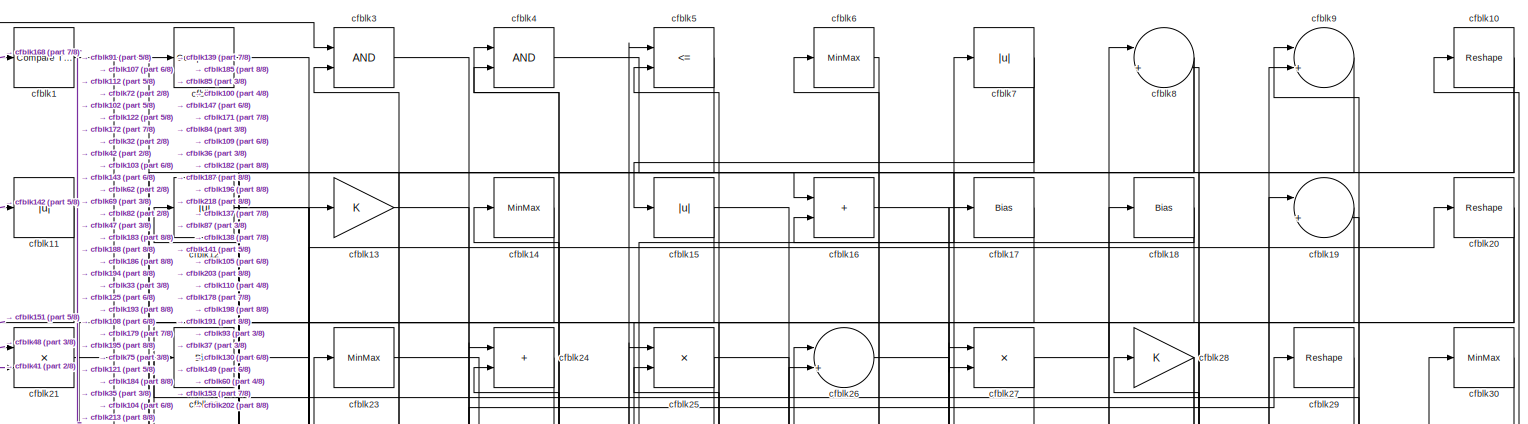
[diagram: root canvas - part 1/8, full width, top band]
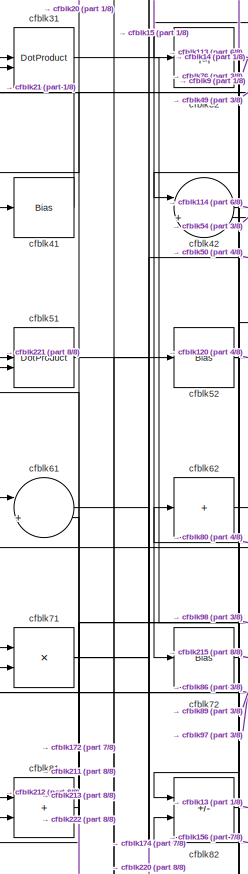
[diagram: root canvas - part 2/8, top left region]
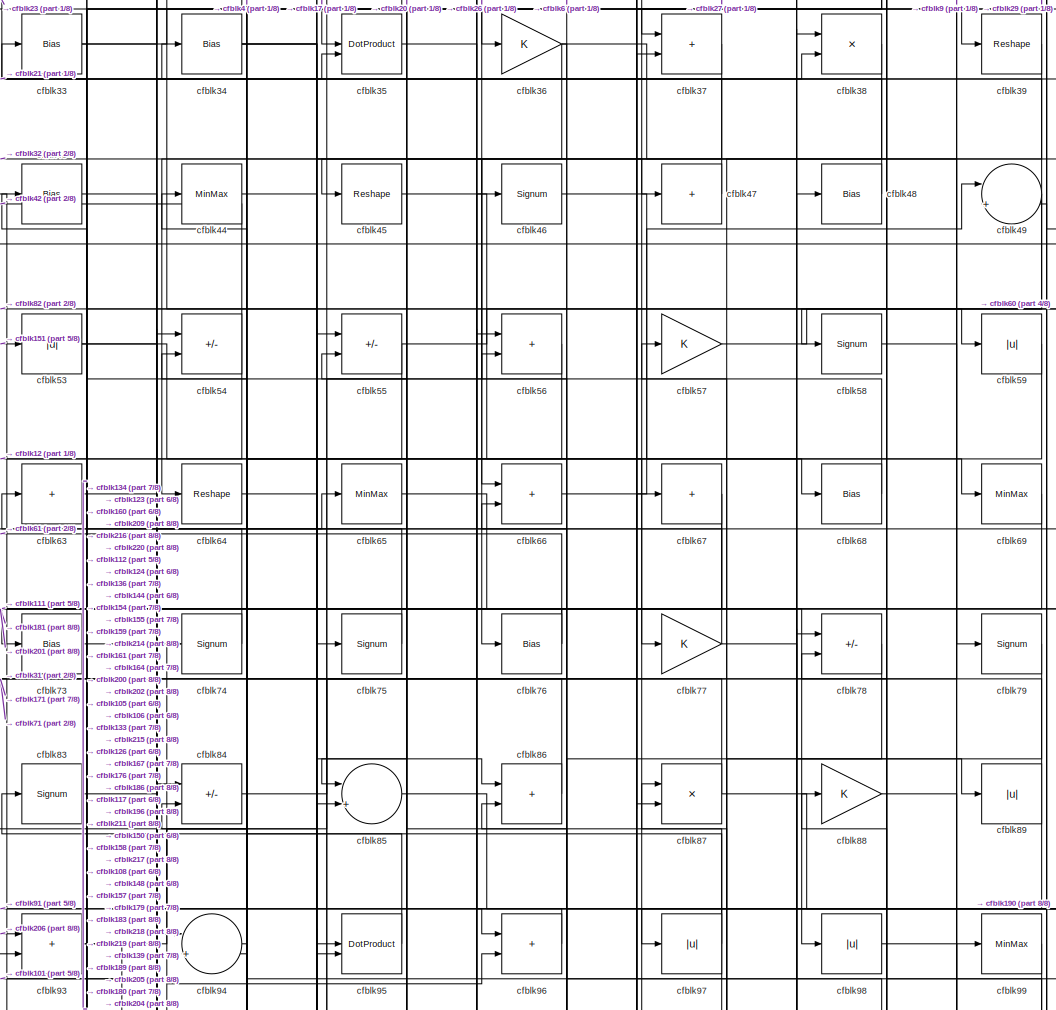
[diagram: root canvas - part 3/8, top center region]
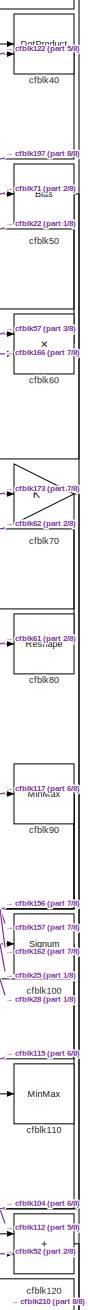
[diagram: root canvas - part 4/8, top right region]
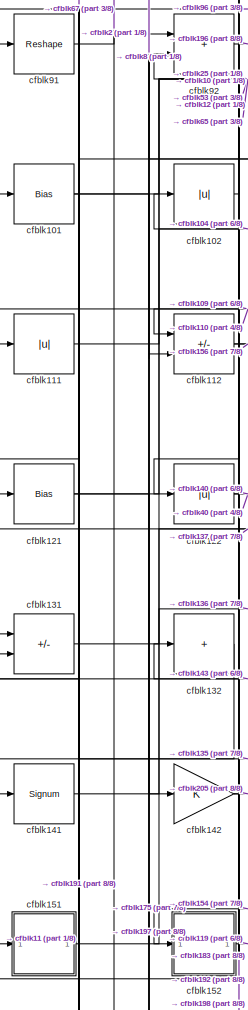
[diagram: root canvas - part 5/8, middle left region]
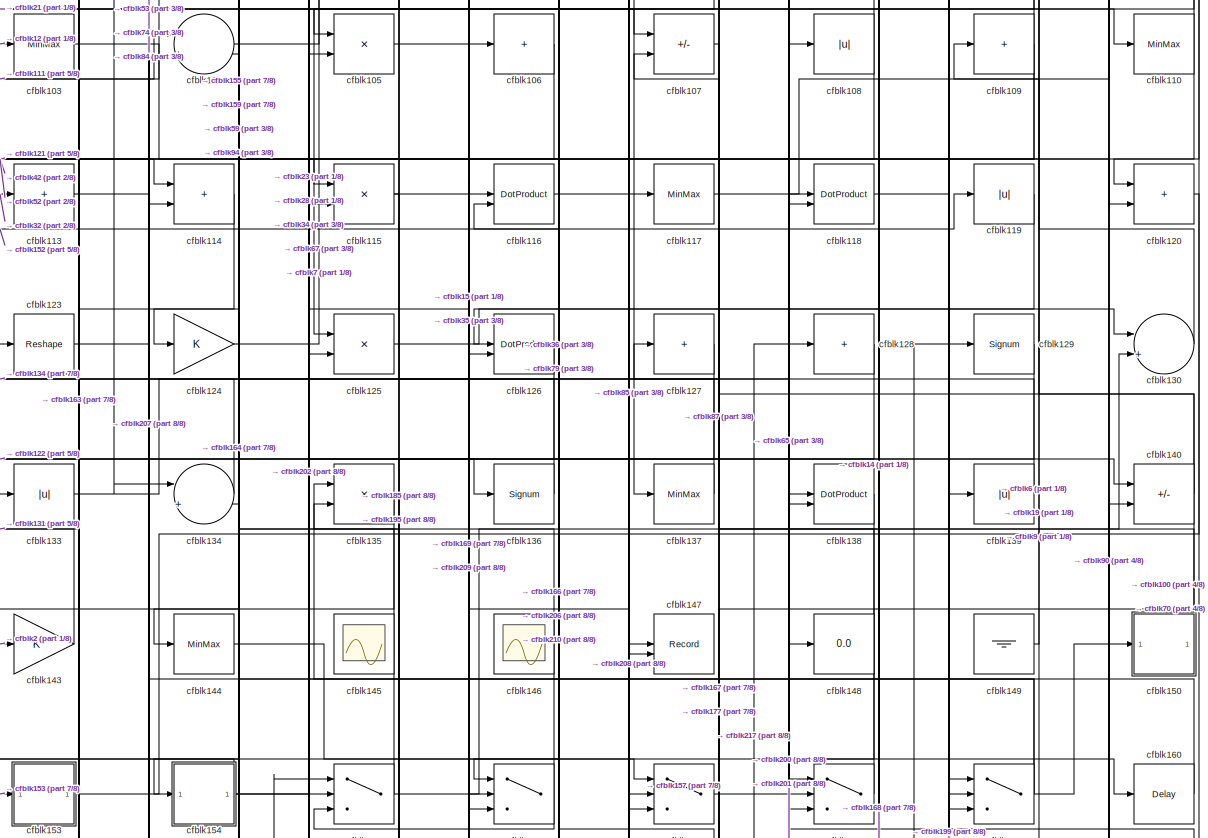
[diagram: root canvas - part 6/8, full width, middle band]
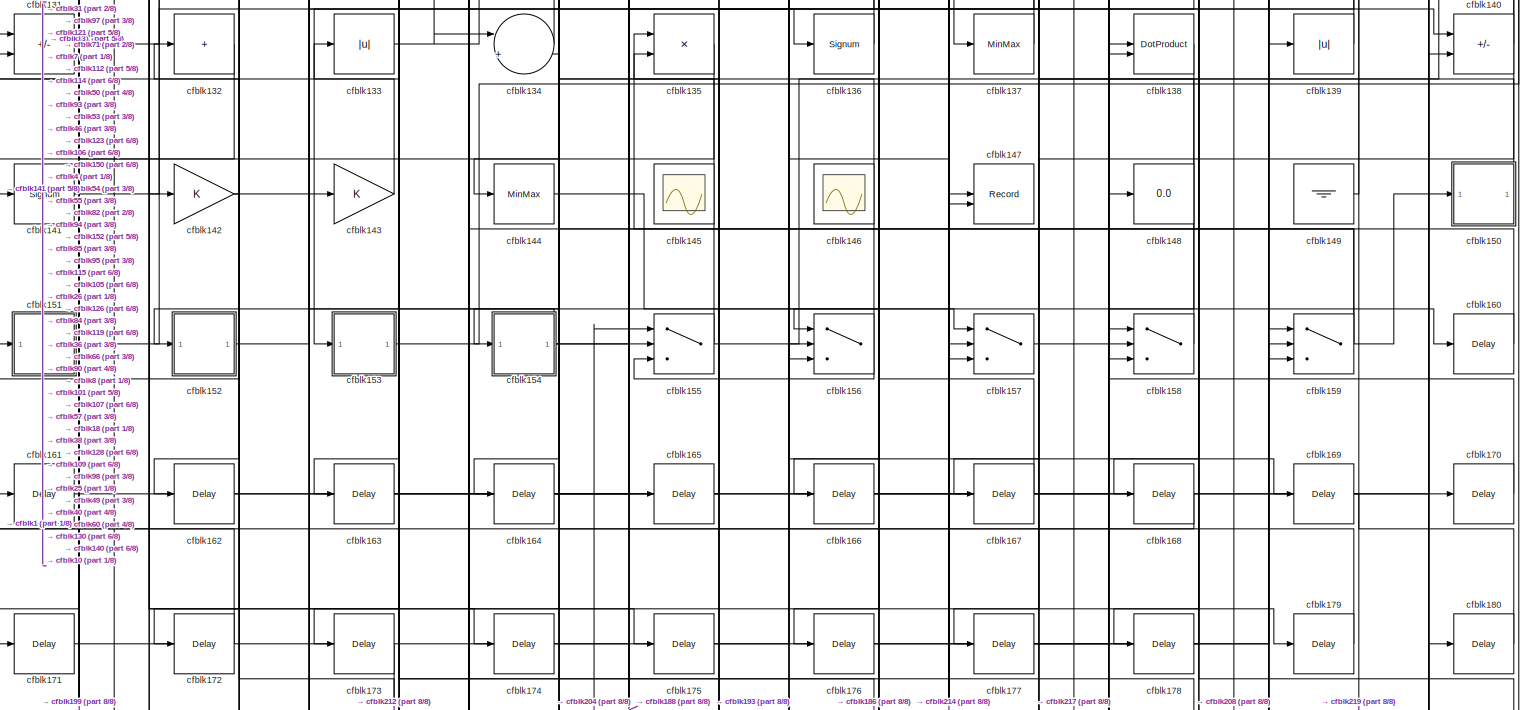
[diagram: root canvas - part 7/8, full width, bottom band]
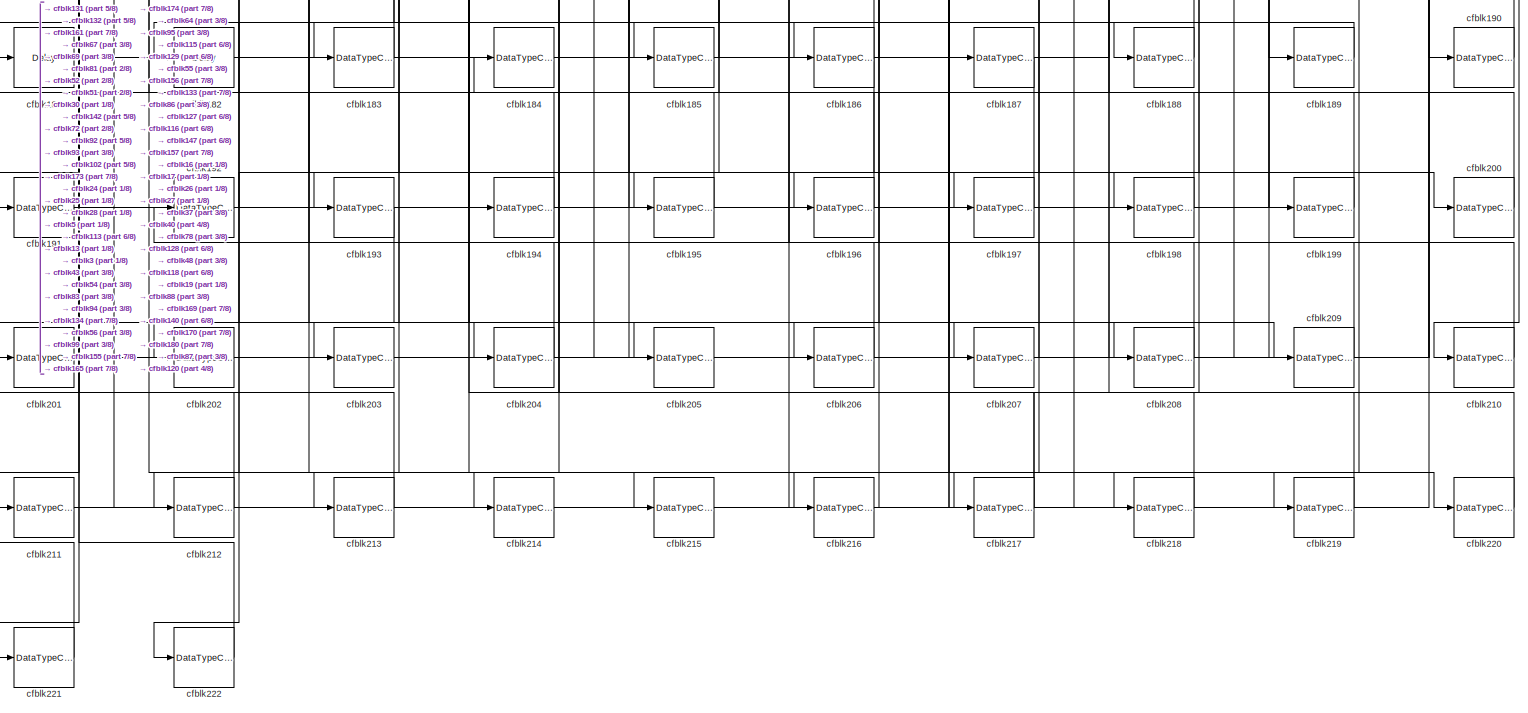
[diagram: root canvas - part 8/8, full width, bottom band]
MODEL slx_fe447b7cc841
KIND model
CONFIG AbsTol = auto
CONFIG EnableMultiTasking = off
CONFIG FixedStep = auto
CONFIG MaxStep = auto
CONFIG MinStep = auto
CONFIG RelTol = 1e-3
CONFIG SampleTimeConstraint = Unconstrained
CONFIG SolverName = VariableStepAuto
CONFIG StartTime = 0.0
CONFIG StopTime = 10.0
BLOCK [Reference] cfblk1  REF=hdlsllib/Logic and Bit
Operations/Compare
To Constant
  SourceBlock = hdlsllib/Logic and Bit\nOperations/Compare\nTo Constant
  SourceType = Compare To Constant
BLOCK [Reshape] cfblk10
BLOCK [Signum] cfblk100
BLOCK [Bias] cfblk101
  Bias = 0.0
  SaturateOnIntegerOverflow = off
BLOCK [Abs] cfblk102
  SaturateOnIntegerOverflow = off
BLOCK [MinMax] cfblk103
BLOCK [Sum] cfblk104
  Inputs = |++
BLOCK [Product] cfblk105
  Inputs = */
  RndMeth = Zero
  SaturateOnIntegerOverflow = on
BLOCK [Sum] cfblk106
  IconShape = rectangular
  Inputs = +
BLOCK [Sum] cfblk107
  IconShape = rectangular
  Inputs = +-
BLOCK [Abs] cfblk108
  SaturateOnIntegerOverflow = off
BLOCK [Sum] cfblk109
  IconShape = rectangular
  Inputs = +
BLOCK [Abs] cfblk11
  SaturateOnIntegerOverflow = off
BLOCK [MinMax] cfblk110
BLOCK [Abs] cfblk111
  SaturateOnIntegerOverflow = off
BLOCK [Sum] cfblk112
  IconShape = rectangular
  Inputs = +-
BLOCK [Sum] cfblk113
  IconShape = rectangular
  Inputs = +
BLOCK [Sum] cfblk114
  IconShape = rectangular
BLOCK [Product] cfblk115
  Inputs = */
  RndMeth = Zero
  SaturateOnIntegerOverflow = on
BLOCK [DotProduct] cfblk116
  OutDataTypeStr = Inherit: Inherit via internal rule
BLOCK [MinMax] cfblk117
BLOCK [DotProduct] cfblk118
  OutDataTypeStr = Inherit: Inherit via internal rule
BLOCK [Abs] cfblk119
  SaturateOnIntegerOverflow = off
BLOCK [Abs] cfblk12
  SaturateOnIntegerOverflow = off
BLOCK [Sum] cfblk120
  IconShape = rectangular
BLOCK [Bias] cfblk121
  Bias = 0.0
  SaturateOnIntegerOverflow = off
BLOCK [Abs] cfblk122
  SaturateOnIntegerOverflow = off
BLOCK [Reshape] cfblk123
BLOCK [Gain] cfblk124
BLOCK [Product] cfblk125
  Inputs = */
  RndMeth = Zero
  SaturateOnIntegerOverflow = on
BLOCK [DotProduct] cfblk126
  OutDataTypeStr = Inherit: Inherit via internal rule
BLOCK [Sum] cfblk127
  IconShape = rectangular
  Inputs = +
BLOCK [Sum] cfblk128
  IconShape = rectangular
  Inputs = +
BLOCK [Signum] cfblk129
BLOCK [Gain] cfblk13
BLOCK [Sum] cfblk130
  Inputs = |++
BLOCK [Sum] cfblk131
  IconShape = rectangular
  Inputs = +-
BLOCK [Sum] cfblk132
  IconShape = rectangular
  Inputs = +
BLOCK [Abs] cfblk133
  SaturateOnIntegerOverflow = off
BLOCK [Sum] cfblk134
  Inputs = |++
BLOCK [Product] cfblk135
  Inputs = */
  RndMeth = Zero
  SaturateOnIntegerOverflow = on
BLOCK [Signum] cfblk136
BLOCK [MinMax] cfblk137
BLOCK [DotProduct] cfblk138
  OutDataTypeStr = Inherit: Inherit via internal rule
BLOCK [Abs] cfblk139
  SaturateOnIntegerOverflow = off
BLOCK [MinMax] cfblk14
BLOCK [Sum] cfblk140
  IconShape = rectangular
  Inputs = +-
BLOCK [Signum] cfblk141
BLOCK [Gain] cfblk142
BLOCK [Gain] cfblk143
BLOCK [MinMax] cfblk144
BLOCK [Scope] cfblk145
  Floating = on
  NumInputPorts = 1
  ScopeSpecificationString = Simulink.scopes.TimeScopeBlockCfg('CurrentConfiguration', extmgr.ConfigurationSet(extmgr.Configuration('Core','General UI',true,'FigureColor',[0.156862745098039 0.156862745098039 0.156862745098039]),extmgr.Configuration('Core','Source UI',true),extmgr.Configuration('Sources','WiredSimulink',true,'DataLoggingVariableName','ScopeData1','DataLoggingSaveFormat','StructureWithTime','DataLoggingLimitDat...<+2713ch>
BLOCK [Scope] cfblk146
  Floating = on
  NumInputPorts = 1
  ScopeSpecificationString = Simulink.scopes.TimeScopeBlockCfg('CurrentConfiguration', extmgr.ConfigurationSet(extmgr.Configuration('Core','General UI',true,'FigureColor',[0.156862745098039 0.156862745098039 0.156862745098039]),extmgr.Configuration('Core','Source UI',true),extmgr.Configuration('Sources','WiredSimulink',true,'DataLoggingVariableName','ScopeData1','DataLoggingSaveFormat','StructureWithTime','DataLoggingLimitDat...<+2713ch>
BLOCK [Record] cfblk147
  CompatibilityTag = XY
  FileSettingsInternal = {"entries":[{"content":{"excelSettings":{"content":{},"type":"Streamout.ExcelSettings"}},"type":"Streamout.FileSettingStorage","uuid":""}],"packageUris":["http:\/\/schema.mathworks.com\/mf0\/streamout_blocks\/R2020a"],"version":"1.0"}
  Layout = [1 1]
  SignalsInternal = {"entries":[{"content":{"signals":[{"content":{"blockPath":[],"dimensions":[1],"domain":"","lineColor":"#a2142f","plots":[1],"port":1,"signalID":5187,"signalName":"XY Graph:1"},"type":"RecordBlkView.Signal","uuid":""},{"content":{"blockPath":[],"dimensions":[1],"domain":"","lineColor":"#139fff","plots":[1],"port":2,"signalID":5190,"signalName":"XY Graph:2"},"type":"RecordBlkView.Signal","uuid":""}...<+146ch>
  VisualizationBindings = {"xyplotplugin":{"info":[{"series":[{"bindingParametersList":[{"parameter":"X-Axis","signalID":5187,"signalName":"XY Graph:1"},{"parameter":"Y-Axis","signalID":5190,"signalName":"XY Graph:2"}],"seriesID":22600}],"subplotID":1}]}}
  st = -1
BLOCK [Display] cfblk148
  Decimation = 1
BLOCK [Ground] cfblk149
BLOCK [Abs] cfblk15
  SaturateOnIntegerOverflow = off
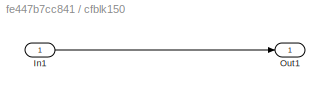
BLOCK [SubSystem] cfblk150
  LibrarySourceBlock = hdlsllib/Ports &\nSubsystems/Subsystem
BLOCK [Inport] cfblk150/In1
BLOCK [Outport] cfblk150/Out1
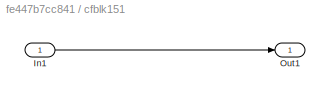
BLOCK [SubSystem] cfblk151
  LibrarySourceBlock = hdlsllib/Ports &\nSubsystems/Subsystem
BLOCK [Inport] cfblk151/In1
BLOCK [Outport] cfblk151/Out1
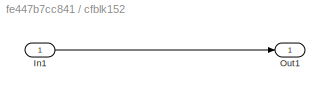
BLOCK [SubSystem] cfblk152
  LibrarySourceBlock = hdlsllib/Ports &\nSubsystems/Subsystem
BLOCK [Inport] cfblk152/In1
BLOCK [Outport] cfblk152/Out1
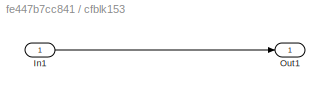
BLOCK [SubSystem] cfblk153
  LibrarySourceBlock = hdlsllib/Ports &\nSubsystems/Subsystem
BLOCK [Inport] cfblk153/In1
BLOCK [Outport] cfblk153/Out1
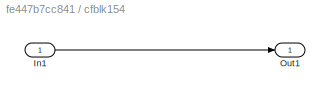
BLOCK [SubSystem] cfblk154
  LibrarySourceBlock = hdlsllib/Ports &\nSubsystems/Subsystem
BLOCK [Inport] cfblk154/In1
BLOCK [Outport] cfblk154/Out1
BLOCK [Switch] cfblk155
  InputSameDT = off
  SaturateOnIntegerOverflow = off
BLOCK [Switch] cfblk156
  InputSameDT = off
  SaturateOnIntegerOverflow = off
BLOCK [Switch] cfblk157
  InputSameDT = off
  SaturateOnIntegerOverflow = off
BLOCK [Switch] cfblk158
  InputSameDT = off
  SaturateOnIntegerOverflow = off
BLOCK [Switch] cfblk159
  InputSameDT = off
  SaturateOnIntegerOverflow = off
BLOCK [Sum] cfblk16
  IconShape = rectangular
BLOCK [Delay] cfblk160
  InputPortMap = u0
  SampleTime = 1
BLOCK [Delay] cfblk161
  InputPortMap = u0
  SampleTime = 1
BLOCK [Delay] cfblk162
  InputPortMap = u0
  SampleTime = 1
BLOCK [Delay] cfblk163
  InputPortMap = u0
  SampleTime = 1
BLOCK [Delay] cfblk164
  InputPortMap = u0
  SampleTime = 1
BLOCK [Delay] cfblk165
  InputPortMap = u0
  SampleTime = 1
BLOCK [Delay] cfblk166
  InputPortMap = u0
  SampleTime = 1
BLOCK [Delay] cfblk167
  InputPortMap = u0
  SampleTime = 1
BLOCK [Delay] cfblk168
  InputPortMap = u0
  SampleTime = 1
BLOCK [Delay] cfblk169
  InputPortMap = u0
  SampleTime = 1
BLOCK [Bias] cfblk17
  Bias = 0.0
  SaturateOnIntegerOverflow = off
BLOCK [Delay] cfblk170
  InputPortMap = u0
  SampleTime = 1
BLOCK [Delay] cfblk171
  InputPortMap = u0
  SampleTime = 1
BLOCK [Delay] cfblk172
  InputPortMap = u0
  SampleTime = 1
BLOCK [Delay] cfblk173
  InputPortMap = u0
  SampleTime = 1
BLOCK [Delay] cfblk174
  InputPortMap = u0
  SampleTime = 1
BLOCK [Delay] cfblk175
  InputPortMap = u0
  SampleTime = 1
BLOCK [Delay] cfblk176
  InputPortMap = u0
  SampleTime = 1
BLOCK [Delay] cfblk177
  InputPortMap = u0
  SampleTime = 1
BLOCK [Delay] cfblk178
  InputPortMap = u0
  SampleTime = 1
BLOCK [Delay] cfblk179
  InputPortMap = u0
  SampleTime = 1
BLOCK [Bias] cfblk18
  Bias = 0.0
  SaturateOnIntegerOverflow = off
BLOCK [Delay] cfblk180
  InputPortMap = u0
  SampleTime = 1
BLOCK [Delay] cfblk181
  InputPortMap = u0
  SampleTime = 1
BLOCK [Delay] cfblk182
  InputPortMap = u0
  SampleTime = 1
BLOCK [DataTypeConversion] cfblk183
  RndMeth = Floor
  SaturateOnIntegerOverflow = off
BLOCK [DataTypeConversion] cfblk184
  OutDataTypeStr = uint8
  RndMeth = Floor
  SaturateOnIntegerOverflow = off
BLOCK [DataTypeConversion] cfblk185
  OutDataTypeStr = uint8
  RndMeth = Floor
  SaturateOnIntegerOverflow = off
BLOCK [DataTypeConversion] cfblk186
  RndMeth = Floor
  SaturateOnIntegerOverflow = off
BLOCK [DataTypeConversion] cfblk187
  OutDataTypeStr = uint8
  RndMeth = Floor
  SaturateOnIntegerOverflow = off
BLOCK [DataTypeConversion] cfblk188
  OutDataTypeStr = uint8
  RndMeth = Floor
  SaturateOnIntegerOverflow = off
BLOCK [DataTypeConversion] cfblk189
  OutDataTypeStr = uint8
  RndMeth = Floor
  SaturateOnIntegerOverflow = off
BLOCK [Sum] cfblk19
  Inputs = |++
BLOCK [DataTypeConversion] cfblk190
  OutDataTypeStr = uint8
  RndMeth = Floor
  SaturateOnIntegerOverflow = off
BLOCK [DataTypeConversion] cfblk191
  RndMeth = Floor
  SaturateOnIntegerOverflow = off
BLOCK [DataTypeConversion] cfblk192
  OutDataTypeStr = uint8
  RndMeth = Floor
  SaturateOnIntegerOverflow = off
BLOCK [DataTypeConversion] cfblk193
  RndMeth = Floor
  SaturateOnIntegerOverflow = off
BLOCK [DataTypeConversion] cfblk194
  OutDataTypeStr = uint8
  RndMeth = Floor
  SaturateOnIntegerOverflow = off
BLOCK [DataTypeConversion] cfblk195
  OutDataTypeStr = uint8
  RndMeth = Floor
  SaturateOnIntegerOverflow = off
BLOCK [DataTypeConversion] cfblk196
  RndMeth = Floor
  SaturateOnIntegerOverflow = off
BLOCK [DataTypeConversion] cfblk197
  OutDataTypeStr = uint8
  RndMeth = Floor
  SaturateOnIntegerOverflow = off
BLOCK [DataTypeConversion] cfblk198
  OutDataTypeStr = uint8
  RndMeth = Floor
  SaturateOnIntegerOverflow = off
BLOCK [DataTypeConversion] cfblk199
  OutDataTypeStr = uint8
  RndMeth = Floor
  SaturateOnIntegerOverflow = off
BLOCK [Reference] cfblk2  REF=hdlsllib/Logic and Bit
Operations/Compare
To Constant
  SourceBlock = hdlsllib/Logic and Bit\nOperations/Compare\nTo Constant
  SourceType = Compare To Constant
BLOCK [Reshape] cfblk20
BLOCK [DataTypeConversion] cfblk200
  OutDataTypeStr = uint8
  RndMeth = Floor
  SaturateOnIntegerOverflow = off
BLOCK [DataTypeConversion] cfblk201
  OutDataTypeStr = uint8
  RndMeth = Floor
  SaturateOnIntegerOverflow = off
BLOCK [DataTypeConversion] cfblk202
  RndMeth = Floor
  SaturateOnIntegerOverflow = off
BLOCK [DataTypeConversion] cfblk203
  OutDataTypeStr = uint8
  RndMeth = Floor
  SaturateOnIntegerOverflow = off
BLOCK [DataTypeConversion] cfblk204
  RndMeth = Floor
  SaturateOnIntegerOverflow = off
BLOCK [DataTypeConversion] cfblk205
  OutDataTypeStr = uint8
  RndMeth = Floor
  SaturateOnIntegerOverflow = off
BLOCK [DataTypeConversion] cfblk206
  RndMeth = Floor
  SaturateOnIntegerOverflow = off
BLOCK [DataTypeConversion] cfblk207
  OutDataTypeStr = uint8
  RndMeth = Floor
  SaturateOnIntegerOverflow = off
BLOCK [DataTypeConversion] cfblk208
  RndMeth = Floor
  SaturateOnIntegerOverflow = off
BLOCK [DataTypeConversion] cfblk209
  OutDataTypeStr = uint8
  RndMeth = Floor
  SaturateOnIntegerOverflow = off
BLOCK [Product] cfblk21
  Inputs = */
  RndMeth = Zero
  SaturateOnIntegerOverflow = on
BLOCK [DataTypeConversion] cfblk210
  OutDataTypeStr = uint8
  RndMeth = Floor
  SaturateOnIntegerOverflow = off
BLOCK [DataTypeConversion] cfblk211
  RndMeth = Floor
  SaturateOnIntegerOverflow = off
BLOCK [DataTypeConversion] cfblk212
  OutDataTypeStr = uint8
  RndMeth = Floor
  SaturateOnIntegerOverflow = off
BLOCK [DataTypeConversion] cfblk213
  OutDataTypeStr = uint8
  RndMeth = Floor
  SaturateOnIntegerOverflow = off
BLOCK [DataTypeConversion] cfblk214
  RndMeth = Floor
  SaturateOnIntegerOverflow = off
BLOCK [DataTypeConversion] cfblk215
  OutDataTypeStr = uint8
  RndMeth = Floor
  SaturateOnIntegerOverflow = off
BLOCK [DataTypeConversion] cfblk216
  OutDataTypeStr = uint8
  RndMeth = Floor
  SaturateOnIntegerOverflow = off
BLOCK [DataTypeConversion] cfblk217
  RndMeth = Floor
  SaturateOnIntegerOverflow = off
BLOCK [DataTypeConversion] cfblk218
  OutDataTypeStr = uint8
  RndMeth = Floor
  SaturateOnIntegerOverflow = off
BLOCK [DataTypeConversion] cfblk219
  OutDataTypeStr = uint8
  RndMeth = Floor
  SaturateOnIntegerOverflow = off
BLOCK [Bias] cfblk22
  Bias = 0.0
  SaturateOnIntegerOverflow = off
BLOCK [DataTypeConversion] cfblk220
  OutDataTypeStr = uint8
  RndMeth = Floor
  SaturateOnIntegerOverflow = off
BLOCK [DataTypeConversion] cfblk221
  OutDataTypeStr = uint8
  RndMeth = Floor
  SaturateOnIntegerOverflow = off
BLOCK [DataTypeConversion] cfblk222
  OutDataTypeStr = uint8
  RndMeth = Floor
  SaturateOnIntegerOverflow = off
BLOCK [MinMax] cfblk23
BLOCK [Sum] cfblk24
  IconShape = rectangular
BLOCK [Product] cfblk25
  Inputs = */
  RndMeth = Zero
  SaturateOnIntegerOverflow = on
BLOCK [Sum] cfblk26
  Inputs = |++
BLOCK [Product] cfblk27
  Inputs = */
  RndMeth = Zero
  SaturateOnIntegerOverflow = on
BLOCK [Gain] cfblk28
BLOCK [Reshape] cfblk29
BLOCK [Logic] cfblk3
  AllPortsSameDT = off
  OutDataTypeStr = boolean
BLOCK [MinMax] cfblk30
BLOCK [DotProduct] cfblk31
  OutDataTypeStr = Inherit: Inherit via internal rule
BLOCK [Abs] cfblk32
  SaturateOnIntegerOverflow = off
BLOCK [Bias] cfblk33
  Bias = 0.0
  SaturateOnIntegerOverflow = off
BLOCK [Bias] cfblk34
  Bias = 0.0
  SaturateOnIntegerOverflow = off
BLOCK [DotProduct] cfblk35
  OutDataTypeStr = Inherit: Inherit via internal rule
BLOCK [Gain] cfblk36
BLOCK [Sum] cfblk37
  IconShape = rectangular
BLOCK [Product] cfblk38
  Inputs = */
  RndMeth = Zero
  SaturateOnIntegerOverflow = on
BLOCK [Reshape] cfblk39
BLOCK [Logic] cfblk4
  AllPortsSameDT = off
  OutDataTypeStr = boolean
BLOCK [DotProduct] cfblk40
  OutDataTypeStr = Inherit: Inherit via internal rule
BLOCK [Bias] cfblk41
  Bias = 0.0
  SaturateOnIntegerOverflow = off
BLOCK [Sum] cfblk42
  Inputs = |++
BLOCK [Bias] cfblk43
  Bias = 0.0
  SaturateOnIntegerOverflow = off
BLOCK [MinMax] cfblk44
BLOCK [Reshape] cfblk45
BLOCK [Signum] cfblk46
BLOCK [Sum] cfblk47
  IconShape = rectangular
  Inputs = +
BLOCK [Bias] cfblk48
  Bias = 0.0
  SaturateOnIntegerOverflow = off
BLOCK [Sum] cfblk49
  Inputs = |++
BLOCK [RelationalOperator] cfblk5
  InputSameDT = off
  Operator = <=
  OutDataTypeStr = boolean
BLOCK [Bias] cfblk50
  Bias = 0.0
  SaturateOnIntegerOverflow = off
BLOCK [DotProduct] cfblk51
  OutDataTypeStr = Inherit: Inherit via internal rule
BLOCK [Bias] cfblk52
  Bias = 0.0
  SaturateOnIntegerOverflow = off
BLOCK [Abs] cfblk53
  SaturateOnIntegerOverflow = off
BLOCK [Sum] cfblk54
  IconShape = rectangular
  Inputs = +-
BLOCK [Sum] cfblk55
  IconShape = rectangular
  Inputs = +-
BLOCK [Sum] cfblk56
  IconShape = rectangular
BLOCK [Gain] cfblk57
BLOCK [Signum] cfblk58
BLOCK [Abs] cfblk59
  SaturateOnIntegerOverflow = off
BLOCK [MinMax] cfblk6
BLOCK [Product] cfblk60
  Inputs = */
  RndMeth = Zero
  SaturateOnIntegerOverflow = on
BLOCK [Sum] cfblk61
  Inputs = |++
BLOCK [Sum] cfblk62
  IconShape = rectangular
  Inputs = +
BLOCK [Sum] cfblk63
  IconShape = rectangular
  Inputs = +
BLOCK [Reshape] cfblk64
BLOCK [MinMax] cfblk65
BLOCK [Sum] cfblk66
  IconShape = rectangular
BLOCK [Sum] cfblk67
  IconShape = rectangular
  Inputs = +
BLOCK [Bias] cfblk68
  Bias = 0.0
  SaturateOnIntegerOverflow = off
BLOCK [MinMax] cfblk69
BLOCK [Abs] cfblk7
  SaturateOnIntegerOverflow = off
BLOCK [Gain] cfblk70
BLOCK [Product] cfblk71
  Inputs = */
  RndMeth = Zero
  SaturateOnIntegerOverflow = on
BLOCK [Bias] cfblk72
  Bias = 0.0
  SaturateOnIntegerOverflow = off
BLOCK [Bias] cfblk73
  Bias = 0.0
  SaturateOnIntegerOverflow = off
BLOCK [Signum] cfblk74
BLOCK [Signum] cfblk75
BLOCK [Bias] cfblk76
  Bias = 0.0
  SaturateOnIntegerOverflow = off
BLOCK [Gain] cfblk77
BLOCK [Sum] cfblk78
  IconShape = rectangular
  Inputs = +-
BLOCK [Signum] cfblk79
BLOCK [Sum] cfblk8
  Inputs = |++
BLOCK [Reshape] cfblk80
BLOCK [Sum] cfblk81
  IconShape = rectangular
BLOCK [Sum] cfblk82
  IconShape = rectangular
  Inputs = +-
BLOCK [Signum] cfblk83
BLOCK [Sum] cfblk84
  IconShape = rectangular
  Inputs = +-
BLOCK [Sum] cfblk85
  Inputs = |++
BLOCK [Sum] cfblk86
  IconShape = rectangular
BLOCK [Product] cfblk87
  Inputs = */
  RndMeth = Zero
  SaturateOnIntegerOverflow = on
BLOCK [Gain] cfblk88
BLOCK [Abs] cfblk89
  SaturateOnIntegerOverflow = off
BLOCK [Sum] cfblk9
  Inputs = |++
BLOCK [MinMax] cfblk90
BLOCK [Reshape] cfblk91
BLOCK [Sum] cfblk92
  IconShape = rectangular
BLOCK [Sum] cfblk93
  IconShape = rectangular
BLOCK [Sum] cfblk94
  Inputs = |++
BLOCK [DotProduct] cfblk95
  OutDataTypeStr = Inherit: Inherit via internal rule
BLOCK [Sum] cfblk96
  IconShape = rectangular
BLOCK [Abs] cfblk97
  SaturateOnIntegerOverflow = off
BLOCK [Abs] cfblk98
  SaturateOnIntegerOverflow = off
BLOCK [MinMax] cfblk99
LINE cfblk100:1 -> cfblk115:1
NET cfblk101:1 -> cfblk142:1, cfblk65:1
LINE cfblk102:1 -> cfblk12:1
LINE cfblk103:1 -> cfblk125:1
LINE cfblk104:1 -> cfblk7:1
LINE cfblk105:1 -> cfblk157:1
LINE cfblk106:1 -> cfblk164:1
LINE cfblk107:1 -> cfblk167:1
NET cfblk108:1 -> cfblk115:2, cfblk14:1
NET cfblk109:1 -> cfblk121:1, cfblk168:1, cfblk6:1
NET cfblk10:1 -> cfblk122:1, cfblk178:1
NET cfblk110:1 -> cfblk112:1, cfblk28:1
LINE cfblk111:1 -> cfblk104:1
NET cfblk112:1 -> cfblk156:3, cfblk96:2
LINE cfblk113:1 -> cfblk207:1
LINE cfblk114:1 -> cfblk163:1
NET cfblk115:1 -> cfblk169:1, cfblk185:1
LINE cfblk116:1 -> cfblk208:1
LINE cfblk117:1 -> cfblk90:1
LINE cfblk118:1 -> cfblk199:1
LINE cfblk119:1 -> cfblk166:1
LINE cfblk11:1 -> cfblk151:1
LINE cfblk120:1 -> cfblk210:1
NET cfblk121:1 -> cfblk175:1, cfblk25:1
NET cfblk122:1 -> cfblk140:1, cfblk40:2
LINE cfblk123:1 -> cfblk74:1
LINE cfblk124:1 -> cfblk67:1
LINE cfblk125:1 -> cfblk130:1
LINE cfblk126:1 -> cfblk155:2
LINE cfblk127:1 -> cfblk206:1
LINE cfblk128:1 -> cfblk153:1
LINE cfblk129:1 -> cfblk195:1
NET cfblk12:1 -> cfblk103:1, cfblk69:1
LINE cfblk130:1 -> cfblk9:1
LINE cfblk131:1 -> cfblk136:1
LINE cfblk132:1 -> cfblk191:1
LINE cfblk133:1 -> cfblk46:1
LINE cfblk134:1 -> cfblk123:1
LINE cfblk135:1 -> cfblk141:1
LINE cfblk136:1 -> cfblk84:2
LINE cfblk137:1 -> cfblk101:1
LINE cfblk138:1 -> cfblk158:2
LINE cfblk139:1 -> cfblk25:2
LINE cfblk13:1 -> cfblk194:1
NET cfblk140:1 -> cfblk107:2, cfblk109:1, cfblk177:1
LINE cfblk141:1 -> cfblk8:1
NET cfblk142:1 -> cfblk11:1, cfblk205:1
LINE cfblk143:1 -> cfblk131:1
LINE cfblk144:1 -> cfblk160:1
LINE cfblk149:1 -> cfblk19:2
LINE cfblk14:1 -> cfblk32:1
LINE cfblk150/In1:1 -> cfblk150/Out1:1
LINE cfblk150:1 -> cfblk87:1
LINE cfblk151/In1:1 -> cfblk151/Out1:1
LINE cfblk151:1 -> cfblk53:1
LINE cfblk152/In1:1 -> cfblk152/Out1:1
LINE cfblk152:1 -> cfblk119:1
LINE cfblk153/In1:1 -> cfblk153/Out1:1
LINE cfblk153:1 -> cfblk10:1
LINE cfblk154/In1:1 -> cfblk154/Out1:1
NET cfblk154:1 -> cfblk152:1, cfblk38:2, cfblk85:2
NET cfblk155:1 -> cfblk130:2, cfblk54:2
NET cfblk156:1 -> cfblk155:3, cfblk82:2
LINE cfblk157:1 -> cfblk38:1
LINE cfblk158:1 -> cfblk57:1
NET cfblk159:1 -> cfblk135:1, cfblk150:1, cfblk94:2
NET cfblk15:1 -> cfblk147:2, cfblk72:1
LINE cfblk160:1 -> cfblk84:1
LINE cfblk161:1 -> cfblk95:1
LINE cfblk162:1 -> cfblk40:1
LINE cfblk163:1 -> cfblk138:1
LINE cfblk164:1 -> cfblk55:1
LINE cfblk165:1 -> cfblk135:2
LINE cfblk166:1 -> cfblk60:2
LINE cfblk167:1 -> cfblk66:2
LINE cfblk168:1 -> cfblk1:1
LINE cfblk169:1 -> cfblk219:1
LINE cfblk16:1 -> cfblk187:1
LINE cfblk170:1 -> cfblk158:1
LINE cfblk171:1 -> cfblk26:2
LINE cfblk172:1 -> cfblk31:2
LINE cfblk173:1 -> cfblk212:1
LINE cfblk174:1 -> cfblk188:1
LINE cfblk175:1 -> cfblk159:2
LINE cfblk176:1 -> cfblk159:3
LINE cfblk177:1 -> cfblk158:3
LINE cfblk178:1 -> cfblk8:2
LINE cfblk179:1 -> cfblk4:2
LINE cfblk17:1 -> cfblk35:1
LINE cfblk180:1 -> cfblk49:2
LINE cfblk181:1 -> cfblk94:1
LINE cfblk182:1 -> cfblk27:1
NET cfblk183:1 -> cfblk102:1, cfblk48:1
LINE cfblk184:1 -> cfblk5:1
LINE cfblk185:1 -> cfblk5:2
NET cfblk186:1 -> cfblk133:1, cfblk222:1, cfblk86:2
LINE cfblk187:1 -> cfblk3:1
LINE cfblk188:1 -> cfblk3:2
LINE cfblk189:1 -> cfblk182:1
NET cfblk18:1 -> cfblk138:2, cfblk16:2
LINE cfblk190:1 -> cfblk88:1
NET cfblk191:1 -> cfblk131:2, cfblk19:1
LINE cfblk192:1 -> cfblk132:1
NET cfblk193:1 -> cfblk165:1, cfblk221:1
LINE cfblk194:1 -> cfblk24:1
LINE cfblk195:1 -> cfblk24:2
NET cfblk196:1 -> cfblk17:1, cfblk55:2
LINE cfblk197:1 -> cfblk92:1
LINE cfblk198:1 -> cfblk92:2
LINE cfblk199:1 -> cfblk161:1
LINE cfblk19:1 -> cfblk198:1
LINE cfblk1:1 -> cfblk27:2
LINE cfblk200:1 -> cfblk118:1
LINE cfblk201:1 -> cfblk118:2
NET cfblk202:1 -> cfblk147:1, cfblk95:2
LINE cfblk203:1 -> cfblk30:1
NET cfblk204:1 -> cfblk155:1, cfblk180:1, cfblk192:1
LINE cfblk205:1 -> cfblk99:1
NET cfblk206:1 -> cfblk140:2, cfblk93:1
LINE cfblk207:1 -> cfblk127:1
NET cfblk208:1 -> cfblk129:1, cfblk156:2
LINE cfblk209:1 -> cfblk116:1
NET cfblk20:1 -> cfblk41:1, cfblk85:1
LINE cfblk210:1 -> cfblk116:2
NET cfblk211:1 -> cfblk37:2, cfblk52:1
LINE cfblk212:1 -> cfblk81:1
LINE cfblk213:1 -> cfblk81:2
NET cfblk214:1 -> cfblk157:3, cfblk170:1
LINE cfblk215:1 -> cfblk56:1
LINE cfblk216:1 -> cfblk56:2
NET cfblk217:1 -> cfblk128:1, cfblk134:2, cfblk184:1
LINE cfblk218:1 -> cfblk78:1
LINE cfblk219:1 -> cfblk78:2
LINE cfblk21:1 -> cfblk107:1
LINE cfblk220:1 -> cfblk54:1
LINE cfblk221:1 -> cfblk51:1
LINE cfblk222:1 -> cfblk51:2
LINE cfblk22:1 -> cfblk110:1
LINE cfblk23:1 -> cfblk125:2
LINE cfblk24:1 -> cfblk193:1
NET cfblk25:1 -> cfblk100:1, cfblk213:1
LINE cfblk26:1 -> cfblk218:1
NET cfblk27:1 -> cfblk18:1, cfblk87:2
NET cfblk28:1 -> cfblk105:2, cfblk203:1
LINE cfblk29:1 -> cfblk37:1
LINE cfblk2:1 -> cfblk143:1
LINE cfblk30:1 -> cfblk202:1
LINE cfblk31:1 -> cfblk98:1
NET cfblk32:1 -> cfblk113:1, cfblk76:1
NET cfblk33:1 -> cfblk29:1, cfblk39:1
NET cfblk34:1 -> cfblk126:2, cfblk47:1, cfblk86:1
LINE cfblk35:1 -> cfblk106:1
NET cfblk36:1 -> cfblk105:1, cfblk139:1, cfblk176:1
LINE cfblk37:1 -> cfblk45:1
LINE cfblk38:1 -> cfblk64:1
LINE cfblk39:1 -> cfblk66:1
LINE cfblk3:1 -> cfblk186:1
LINE cfblk40:1 -> cfblk197:1
LINE cfblk41:1 -> cfblk21:2
LINE cfblk42:1 -> cfblk114:1
LINE cfblk43:1 -> cfblk216:1
LINE cfblk44:1 -> cfblk75:1
LINE cfblk45:1 -> cfblk77:1
LINE cfblk46:1 -> cfblk68:1
LINE cfblk47:1 -> cfblk23:1
LINE cfblk48:1 -> cfblk21:1
NET cfblk49:1 -> cfblk31:1, cfblk58:1, cfblk82:1
LINE cfblk4:1 -> cfblk16:1
NET cfblk50:1 -> cfblk173:1, cfblk70:1
LINE cfblk51:1 -> cfblk220:1
NET cfblk52:1 -> cfblk114:2, cfblk120:2
NET cfblk53:1 -> cfblk108:1, cfblk179:1
NET cfblk54:1 -> cfblk42:2, cfblk93:2
NET cfblk55:1 -> cfblk154:1, cfblk59:1
LINE cfblk56:1 -> cfblk214:1
LINE cfblk57:1 -> cfblk60:1
LINE cfblk58:1 -> cfblk79:1
LINE cfblk59:1 -> cfblk144:1
LINE cfblk5:1 -> cfblk183:1
LINE cfblk60:1 -> cfblk22:1
LINE cfblk61:1 -> cfblk80:1
LINE cfblk62:1 -> cfblk20:1
LINE cfblk63:1 -> cfblk35:2
LINE cfblk64:1 -> cfblk200:1
LINE cfblk65:1 -> cfblk148:1
LINE cfblk66:1 -> cfblk49:1
NET cfblk67:1 -> cfblk111:1, cfblk181:1
LINE cfblk68:1 -> cfblk33:1
LINE cfblk69:1 -> cfblk201:1
LINE cfblk6:1 -> cfblk36:1
NET cfblk70:1 -> cfblk104:2, cfblk120:1
NET cfblk71:1 -> cfblk174:1, cfblk50:1
LINE cfblk72:1 -> cfblk215:1
LINE cfblk73:1 -> cfblk96:1
LINE cfblk74:1 -> cfblk63:1
LINE cfblk75:1 -> cfblk4:1
NET cfblk76:1 -> cfblk61:1, cfblk73:1
NET cfblk77:1 -> cfblk43:1, cfblk89:1
LINE cfblk78:1 -> cfblk217:1
LINE cfblk79:1 -> cfblk126:1
NET cfblk7:1 -> cfblk15:1, cfblk172:1
LINE cfblk80:1 -> cfblk62:1
LINE cfblk81:1 -> cfblk211:1
LINE cfblk82:1 -> cfblk13:1
LINE cfblk83:1 -> cfblk209:1
LINE cfblk84:1 -> cfblk26:1
LINE cfblk85:1 -> cfblk117:1
LINE cfblk86:1 -> cfblk71:1
NET cfblk87:1 -> cfblk190:1, cfblk34:1
LINE cfblk88:1 -> cfblk189:1
NET cfblk89:1 -> cfblk61:2, cfblk97:1
NET cfblk8:1 -> cfblk112:2, cfblk137:1
NET cfblk90:1 -> cfblk156:1, cfblk157:2, cfblk162:1
LINE cfblk91:1 -> cfblk2:1
LINE cfblk92:1 -> cfblk196:1
NET cfblk93:1 -> cfblk134:1, cfblk9:2
LINE cfblk94:1 -> cfblk124:1
LINE cfblk95:1 -> cfblk44:1
LINE cfblk96:1 -> cfblk91:1
NET cfblk97:1 -> cfblk171:1, cfblk71:2, cfblk83:1
LINE cfblk98:1 -> cfblk159:1
LINE cfblk99:1 -> cfblk204:1
LINE cfblk9:1 -> cfblk42:1
note: NET lines group one-source signal fan-out (src -> all destinations, sorted); 1:1 wires keep LINE
